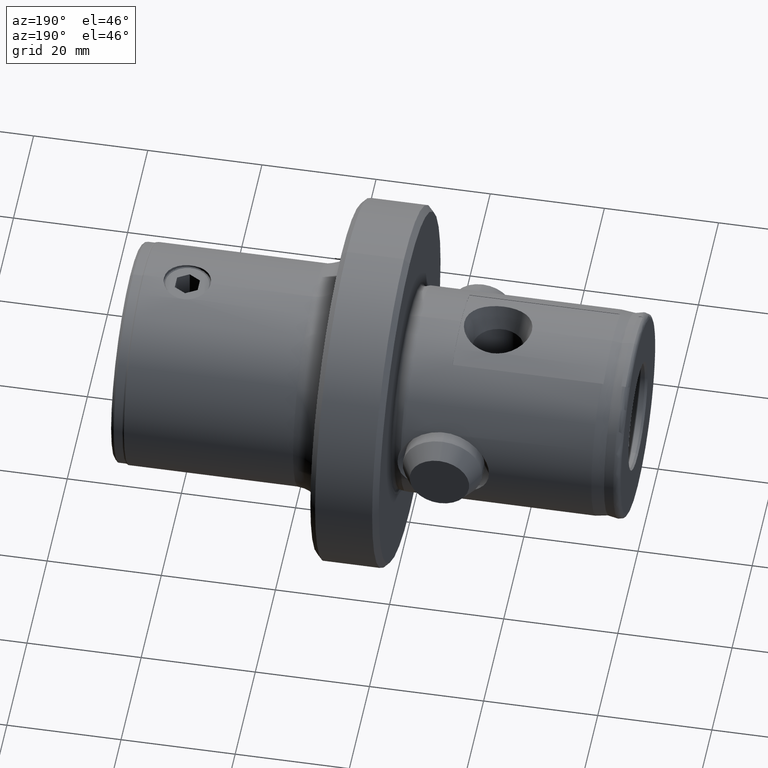
[diagram: clean part render]
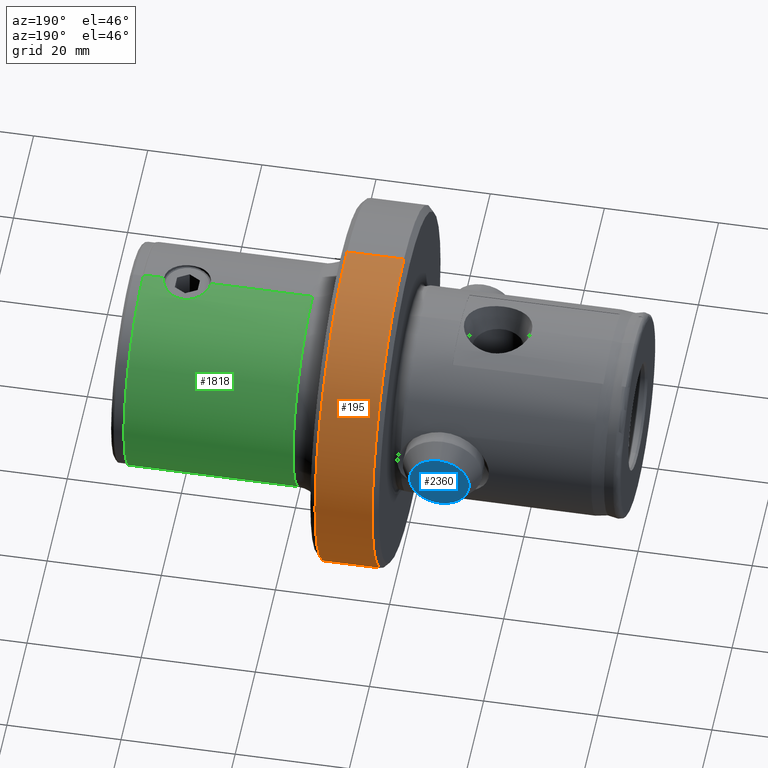
[diagram: same view with three faces highlighted in distinct colors, each labeled with its STEP entity id]
A machine part, auxiliary view with three faces highlighted in distinct colors.
Their STEP definitions:

[orange] entity #195 — the highlighted cylindrical surface (partial cylindrical patch) has radius 31.635 mm, axis along (-1, -0, -0).
#136 = CIRCLE ( 'NONE', #1271, 31.63500000000000500 ) ;
#195 = ADVANCED_FACE ( 'NONE', ( #558 ), #3509, .T. ) ;
#323 = CARTESIAN_POINT ( 'NONE',  ( 0.0000000000000000000, 3.874170149102652900E-015, -31.63500000000000500 ) ) ;
#365 = DIRECTION ( 'NONE',  ( -1.000000000000000000, -0.0000000000000000000, -0.0000000000000000000 ) ) ;
#378 = EDGE_LOOP ( 'NONE', ( #604, #4926, #450, #2408 ) ) ;
#450 = ORIENTED_EDGE ( 'NONE', *, *, #2089, .F. ) ;
#514 = CARTESIAN_POINT ( 'NONE',  ( 0.0000000000000000000, 0.0000000000000000000, 31.63500000000000500 ) ) ;
#558 = FACE_OUTER_BOUND ( 'NONE', #378, .T. ) ;
#604 = ORIENTED_EDGE ( 'NONE', *, *, #2343, .T. ) ;
#624 = DIRECTION ( 'NONE',  ( -1.000000000000000000, -0.0000000000000000000, -0.0000000000000000000 ) ) ;
#821 = AXIS2_PLACEMENT_3D ( 'NONE', #3019, #624, #3428 ) ;
#954 = VECTOR ( 'NONE', #4100, 1000.000000000000000 ) ;
#975 = EDGE_CURVE ( 'NONE', #1857, #4987, #2033, .T. ) ;
#1271 = AXIS2_PLACEMENT_3D ( 'NONE', #4126, #1722, #4531 ) ;
#1346 = EDGE_CURVE ( 'NONE', #4313, #4741, #3967, .T. ) ;
#1722 = DIRECTION ( 'NONE',  ( -1.000000000000000000, -0.0000000000000000000, -0.0000000000000000000 ) ) ;
#1826 = VECTOR ( 'NONE', #2327, 1000.000000000000000 ) ;
#1857 = VERTEX_POINT ( 'NONE', #4416 ) ;
#2033 = LINE ( 'NONE', #514, #954 ) ;
#2089 = EDGE_CURVE ( 'NONE', #4987, #4741, #3528, .T. ) ;
#2195 = CARTESIAN_POINT ( 'NONE',  ( 51.00000000000000700, 3.874170149102652900E-015, -31.63500000000000500 ) ) ;
#2282 = CARTESIAN_POINT ( 'NONE',  ( 41.00000000000000000, 3.874170149102652900E-015, -31.63500000000000500 ) ) ;
#2327 = DIRECTION ( 'NONE',  ( -1.000000000000000000, -0.0000000000000000000, -0.0000000000000000000 ) ) ;
#2343 = EDGE_CURVE ( 'NONE', #1857, #4313, #136, .T. ) ;
#2348 = CARTESIAN_POINT ( 'NONE',  ( 0.0000000000000000000, 0.0000000000000000000, 0.0000000000000000000 ) ) ;
#2408 = ORIENTED_EDGE ( 'NONE', *, *, #975, .F. ) ;
#2948 = AXIS2_PLACEMENT_3D ( 'NONE', #2348, #365, #3183 ) ;
#3019 = CARTESIAN_POINT ( 'NONE',  ( 41.00000000000000000, 0.0000000000000000000, 0.0000000000000000000 ) ) ;
#3183 = DIRECTION ( 'NONE',  ( 0.0000000000000000000, 0.0000000000000000000, 1.000000000000000000 ) ) ;
#3428 = DIRECTION ( 'NONE',  ( 0.0000000000000000000, 0.0000000000000000000, 1.000000000000000000 ) ) ;
#3509 = CYLINDRICAL_SURFACE ( 'NONE', #2948, 31.63500000000000500 ) ;
#3528 = CIRCLE ( 'NONE', #821, 31.63500000000000500 ) ;
#3967 = LINE ( 'NONE', #323, #1826 ) ;
#4100 = DIRECTION ( 'NONE',  ( -1.000000000000000000, -0.0000000000000000000, -0.0000000000000000000 ) ) ;
#4126 = CARTESIAN_POINT ( 'NONE',  ( 51.00000000000000700, 0.0000000000000000000, 0.0000000000000000000 ) ) ;
#4313 = VERTEX_POINT ( 'NONE', #2195 ) ;
#4416 = CARTESIAN_POINT ( 'NONE',  ( 51.00000000000000700, 0.0000000000000000000, 31.63500000000000500 ) ) ;
#4531 = DIRECTION ( 'NONE',  ( 0.0000000000000000000, 0.0000000000000000000, 1.000000000000000000 ) ) ;
#4741 = VERTEX_POINT ( 'NONE', #2282 ) ;
#4760 = CARTESIAN_POINT ( 'NONE',  ( 41.00000000000000000, 0.0000000000000000000, 31.63500000000000500 ) ) ;
#4926 = ORIENTED_EDGE ( 'NONE', *, *, #1346, .T. ) ;
#4987 = VERTEX_POINT ( 'NONE', #4760 ) ;

[blue] entity #2360 — the highlighted planar face has unit normal (0, 1, 0).
#184 = ORIENTED_EDGE ( 'NONE', *, *, #1155, .T. ) ;
#282 = CIRCLE ( 'NONE', #3578, 5.217949192431120800 ) ;
#412 = AXIS2_PLACEMENT_3D ( 'NONE', #3825, #1447, #4236 ) ;
#659 = VERTEX_POINT ( 'NONE', #2392 ) ;
#861 = DIRECTION ( 'NONE',  ( 1.000000000000000000, 0.0000000000000000000, 0.0000000000000000000 ) ) ;
#1155 = EDGE_CURVE ( 'NONE', #1798, #659, #2204, .T. ) ;
#1447 = DIRECTION ( 'NONE',  ( 1.000000000000000000, 0.0000000000000000000, 0.0000000000000000000 ) ) ;
#1798 = VERTEX_POINT ( 'NONE', #3979 ) ;
#1904 = EDGE_LOOP ( 'NONE', ( #184, #2991 ) ) ;
#2069 = AXIS2_PLACEMENT_3D ( 'NONE', #3718, #2132, #4919 ) ;
#2132 = DIRECTION ( 'NONE',  ( 1.000000000000000000, 0.0000000000000000000, 0.0000000000000000000 ) ) ;
#2204 = CIRCLE ( 'NONE', #412, 5.217949192431120800 ) ;
#2360 = ADVANCED_FACE ( 'NONE', ( #4404 ), #3322, .T. ) ;
#2392 = CARTESIAN_POINT ( 'NONE',  ( 43.00000000000000000, 7.450720015349195300E-016, -5.217949192431120800 ) ) ;
#2991 = ORIENTED_EDGE ( 'NONE', *, *, #3846, .T. ) ;
#3257 = CARTESIAN_POINT ( 'NONE',  ( 43.00000000000000000, 0.0000000000000000000, 0.0000000000000000000 ) ) ;
#3322 = PLANE ( 'NONE',  #2069 ) ;
#3578 = AXIS2_PLACEMENT_3D ( 'NONE', #3257, #861, #3656 ) ;
#3656 = DIRECTION ( 'NONE',  ( 0.0000000000000000000, 0.0000000000000000000, -1.000000000000000000 ) ) ;
#3718 = CARTESIAN_POINT ( 'NONE',  ( 43.00000000000000000, 0.0000000000000000000, 0.0000000000000000000 ) ) ;
#3825 = CARTESIAN_POINT ( 'NONE',  ( 43.00000000000000000, 0.0000000000000000000, 0.0000000000000000000 ) ) ;
#3846 = EDGE_CURVE ( 'NONE', #659, #1798, #282, .T. ) ;
#3979 = CARTESIAN_POINT ( 'NONE',  ( 43.00000000000000000, 0.0000000000000000000, 5.217949192431120800 ) ) ;
#4236 = DIRECTION ( 'NONE',  ( 0.0000000000000000000, 0.0000000000000000000, -1.000000000000000000 ) ) ;
#4404 = FACE_OUTER_BOUND ( 'NONE', #1904, .T. ) ;
#4919 = DIRECTION ( 'NONE',  ( 0.0000000000000000000, 0.0000000000000000000, -1.000000000000000000 ) ) ;

[green] entity #1818 — the highlighted cylindrical surface (partial cylindrical patch) has radius 19.5 mm, axis along (-1, -0, -0).
#32 = DIRECTION ( 'NONE',  ( 0.0000000000000000000, 0.0000000000000000000, 1.000000000000000000 ) ) ;
#46 = CARTESIAN_POINT ( 'NONE',  ( 57.00000000000000000, 0.0000000000000000000, 19.50000000000000000 ) ) ;
#143 = CARTESIAN_POINT ( 'NONE',  ( 77.88384900634645200, 3.967974412405844500, 19.09209391861249800 ) ) ;
#145 = ORIENTED_EDGE ( 'NONE', *, *, #4938, .F. ) ;
#160 = CARTESIAN_POINT ( 'NONE',  ( 82.50655283232788400, 2.057620360772300900, 19.39245199659770000 ) ) ;
#373 = CARTESIAN_POINT ( 'NONE',  ( 89.00000000000000000, 0.0000000000000000000, 0.0000000000000000000 ) ) ;
#488 = CARTESIAN_POINT ( 'NONE',  ( 89.00000000000000000, 2.388061258337338900E-015, -19.50000000000000000 ) ) ;
#508 = EDGE_CURVE ( 'NONE', #2474, #4908, #3809, .T. ) ;
#528 = CARTESIAN_POINT ( 'NONE',  ( 74.98180420751573600, 1.066221518107487900, 19.47264488405742000 ) ) ;
#546 = CARTESIAN_POINT ( 'NONE',  ( 78.67745411251790700, 4.099873574573570600, 19.06412958120875300 ) ) ;
#562 = CARTESIAN_POINT ( 'NONE',  ( 82.83781428936636400, 1.328990192064369000, 19.45623212229134700 ) ) ;
#742 = CARTESIAN_POINT ( 'NONE',  ( 57.00000000000000000, 2.388061258337338900E-015, -19.50000000000000000 ) ) ;
#935 = CARTESIAN_POINT ( 'NONE',  ( 75.26499609809542300, 1.817176892222171200, 19.41672420750703800 ) ) ;
#950 = AXIS2_PLACEMENT_3D ( 'NONE', #1454, #4244, #1837 ) ;
#953 = CARTESIAN_POINT ( 'NONE',  ( 79.48539333265141200, 4.073714398615806900, 19.06981103990832700 ) ) ;
#972 = CARTESIAN_POINT ( 'NONE',  ( 83.02326684601331400, 0.5396798516833750700, 19.49432796829833900 ) ) ;
#994 = VERTEX_POINT ( 'NONE', #2920 ) ;
#1339 = CIRCLE ( 'NONE', #4957, 19.50000000000000000 ) ;
#1344 = CARTESIAN_POINT ( 'NONE',  ( 75.69136273160555100, 2.502650868706119500, 19.34004016757369400 ) ) ;
#1361 = CARTESIAN_POINT ( 'NONE',  ( 80.27251019756944600, 3.890087757049127200, 19.10832702276642100 ) ) ;
#1379 = CARTESIAN_POINT ( 'NONE',  ( 83.04999999999998300, -9.025984584095968500E-016, 19.50000000000000000 ) ) ;
#1381 = CARTESIAN_POINT ( 'NONE',  ( 86.63431457505075200, 2.388061258337338900E-015, -19.50000000000000000 ) ) ;
#1453 = EDGE_CURVE ( 'NONE', #4908, #3007, #1339, .T. ) ;
#1454 = CARTESIAN_POINT ( 'NONE',  ( 86.63431457505075200, 0.0000000000000000000, 0.0000000000000000000 ) ) ;
#1480 = LINE ( 'NONE', #1568, #4666 ) ;
#1568 = CARTESIAN_POINT ( 'NONE',  ( 89.00000000000000000, 0.0000000000000000000, 19.50000000000000000 ) ) ;
#1596 = CIRCLE ( 'NONE', #950, 19.50000000000000000 ) ;
#1733 = CARTESIAN_POINT ( 'NONE',  ( 76.23816060137090700, 3.086638747966350400, 19.25510873947715100 ) ) ;
#1751 = CARTESIAN_POINT ( 'NONE',  ( 81.00299688711848500, 3.559106950108307000, 19.17304519743992200 ) ) ;
#1810 = VECTOR ( 'NONE', #4482, 1000.000000000000000 ) ;
#1818 = ADVANCED_FACE ( 'NONE', ( #4336 ), #4084, .T. ) ;
#1837 = DIRECTION ( 'NONE',  ( 0.0000000000000000000, 0.0000000000000000000, 1.000000000000000000 ) ) ;
#1918 = B_SPLINE_CURVE_WITH_KNOTS ( 'NONE', 3,
 ( #2131, #4528, #2926, #528, #3337, #935, #3729, #1344, #4139, #1733, #4544, #2146, #4933, #2537, #143, #2946, #546, #3346, #953, #3743, #1361, #4153, #1751, #4560, #2162, #4951, #2555, #160, #2962, #562, #3365, #972, #3762, #1379 ),
 .UNSPECIFIED., .F., .F.,
 ( 4, 2, 2, 2, 2, 2, 2, 2, 2, 2, 2, 2, 2, 2, 2, 2, 4 ),
 ( 0.01285440415728771000, 0.01365759472102046400, 0.01446078528475322000, 0.01526397584848597500, 0.01606716641221872900, 0.01687035697595148200, 0.01767354753968424000, 0.01847673810341699000, 0.01927992866714974700, 0.02008311923088250100, 0.02088630979461525400, 0.02168950035834800800, 0.02249269092208076200, 0.02329588148581351900, 0.02409907204954627200, 0.02490226261327902600, 0.02570545317701178000 ),
 .UNSPECIFIED. ) ;
#1952 = ORIENTED_EDGE ( 'NONE', *, *, #1453, .T. ) ;
#1969 = DIRECTION ( 'NONE',  ( -1.000000000000000000, -0.0000000000000000000, -0.0000000000000000000 ) ) ;
#2057 = VECTOR ( 'NONE', #4340, 1000.000000000000000 ) ;
#2131 = CARTESIAN_POINT ( 'NONE',  ( 74.84999999999999400, 8.331128465602896800E-022, 19.50000000000000000 ) ) ;
#2146 = CARTESIAN_POINT ( 'NONE',  ( 76.89200889041920600, 3.556104273386338400, 19.17359724701417200 ) ) ;
#2162 = CARTESIAN_POINT ( 'NONE',  ( 81.65883272012625600, 3.089202787936394100, 19.25468922842919600 ) ) ;
#2167 = LINE ( 'NONE', #3936, #2057 ) ;
#2393 = DIRECTION ( 'NONE',  ( 0.0000000000000000000, 0.0000000000000000000, 1.000000000000000000 ) ) ;
#2430 = DIRECTION ( 'NONE',  ( 1.000000000000000000, 0.0000000000000000000, 0.0000000000000000000 ) ) ;
#2474 = VERTEX_POINT ( 'NONE', #1381 ) ;
#2537 = CARTESIAN_POINT ( 'NONE',  ( 77.62470393943634400, 3.889242478390361000, 19.10850376499960400 ) ) ;
#2555 = CARTESIAN_POINT ( 'NONE',  ( 82.20607366394210700, 2.506163181675740600, 19.33960036030278600 ) ) ;
#2792 = AXIS2_PLACEMENT_3D ( 'NONE', #373, #4381, #2393 ) ;
#2920 = CARTESIAN_POINT ( 'NONE',  ( 86.63431457505075200, 0.0000000000000000000, 19.50000000000000000 ) ) ;
#2926 = CARTESIAN_POINT ( 'NONE',  ( 74.87600710443078400, 0.5347785149170484200, 19.49447970699054600 ) ) ;
#2946 = CARTESIAN_POINT ( 'NONE',  ( 78.40825263077864800, 4.072837913140867600, 19.06999901593889000 ) ) ;
#2962 = CARTESIAN_POINT ( 'NONE',  ( 82.63257333203402800, 1.822078081037240800, 19.41626160705733300 ) ) ;
#3007 = VERTEX_POINT ( 'NONE', #46 ) ;
#3022 = ORIENTED_EDGE ( 'NONE', *, *, #3683, .F. ) ;
#3100 = VERTEX_POINT ( 'NONE', #4944 ) ;
#3102 = ORIENTED_EDGE ( 'NONE', *, *, #508, .T. ) ;
#3157 = VERTEX_POINT ( 'NONE', #4587 ) ;
#3337 = CARTESIAN_POINT ( 'NONE',  ( 75.06032631130590000, 1.323564962576109200, 19.45660521771094800 ) ) ;
#3346 = CARTESIAN_POINT ( 'NONE',  ( 79.21872880211228100, 4.100125537003149700, 19.06407539319491600 ) ) ;
#3365 = CARTESIAN_POINT ( 'NONE',  ( 82.91745484172246000, 1.068671708260928100, 19.47249388388283700 ) ) ;
#3683 = EDGE_CURVE ( 'NONE', #994, #3100, #2167, .T. ) ;
#3729 = CARTESIAN_POINT ( 'NONE',  ( 75.39301943229540400, 2.056664157945233800, 19.39253845156489200 ) ) ;
#3743 = CARTESIAN_POINT ( 'NONE',  ( 80.01103124408879800, 3.969383796158369100, 19.09180018694137400 ) ) ;
#3762 = CARTESIAN_POINT ( 'NONE',  ( 83.04999999999995500, 0.2716420588160323200, 19.49999999999999300 ) ) ;
#3809 = LINE ( 'NONE', #488, #1810 ) ;
#3936 = CARTESIAN_POINT ( 'NONE',  ( 89.00000000000000000, 0.0000000000000000000, 19.50000000000000000 ) ) ;
#4084 = CYLINDRICAL_SURFACE ( 'NONE', #2792, 19.50000000000000000 ) ;
#4139 = CARTESIAN_POINT ( 'NONE',  ( 75.86044424509106000, 2.708515630693937300, 19.31192622209973900 ) ) ;
#4153 = CARTESIAN_POINT ( 'NONE',  ( 80.76762428016940000, 3.684841646035462900, 19.14896567468257500 ) ) ;
#4244 = DIRECTION ( 'NONE',  ( -1.000000000000000000, -0.0000000000000000000, -0.0000000000000000000 ) ) ;
#4336 = FACE_OUTER_BOUND ( 'NONE', #4694, .T. ) ;
#4340 = DIRECTION ( 'NONE',  ( -1.000000000000000000, -0.0000000000000000000, -0.0000000000000000000 ) ) ;
#4364 = EDGE_CURVE ( 'NONE', #994, #2474, #1596, .T. ) ;
#4381 = DIRECTION ( 'NONE',  ( -1.000000000000000000, -0.0000000000000000000, -0.0000000000000000000 ) ) ;
#4482 = DIRECTION ( 'NONE',  ( -1.000000000000000000, -0.0000000000000000000, -0.0000000000000000000 ) ) ;
#4528 = CARTESIAN_POINT ( 'NONE',  ( 74.85000000000000900, 0.2679336955998224400, 19.50000000000000400 ) ) ;
#4544 = CARTESIAN_POINT ( 'NONE',  ( 76.44843460934089300, 3.259352022498764900, 19.22626675637626500 ) ) ;
#4560 = CARTESIAN_POINT ( 'NONE',  ( 81.44946989160749200, 3.261087052161433200, 19.22597762569197100 ) ) ;
#4580 = EDGE_CURVE ( 'NONE', #3157, #3100, #1918, .T. ) ;
#4587 = CARTESIAN_POINT ( 'NONE',  ( 74.84999999999999400, 8.331128465602896800E-022, 19.50000000000000000 ) ) ;
#4666 = VECTOR ( 'NONE', #1969, 1000.000000000000000 ) ;
#4694 = EDGE_LOOP ( 'NONE', ( #5119, #3102, #1952, #145, #5062, #3022 ) ) ;
#4818 = CARTESIAN_POINT ( 'NONE',  ( 57.00000000000000000, 0.0000000000000000000, 0.0000000000000000000 ) ) ;
#4908 = VERTEX_POINT ( 'NONE', #742 ) ;
#4933 = CARTESIAN_POINT ( 'NONE',  ( 77.12705844430847400, 3.682322743648982900, 19.14945488530483800 ) ) ;
#4938 = EDGE_CURVE ( 'NONE', #3157, #3007, #1480, .T. ) ;
#4944 = CARTESIAN_POINT ( 'NONE',  ( 83.04999999999998300, -9.025984584095968500E-016, 19.50000000000000000 ) ) ;
#4951 = CARTESIAN_POINT ( 'NONE',  ( 82.03576394513694900, 2.712749425493188300, 19.31132366521952200 ) ) ;
#4957 = AXIS2_PLACEMENT_3D ( 'NONE', #4818, #2430, #32 ) ;
#5062 = ORIENTED_EDGE ( 'NONE', *, *, #4580, .T. ) ;
#5119 = ORIENTED_EDGE ( 'NONE', *, *, #4364, .T. ) ;